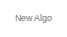
[diagram: root canvas - part 1/5, top right region]
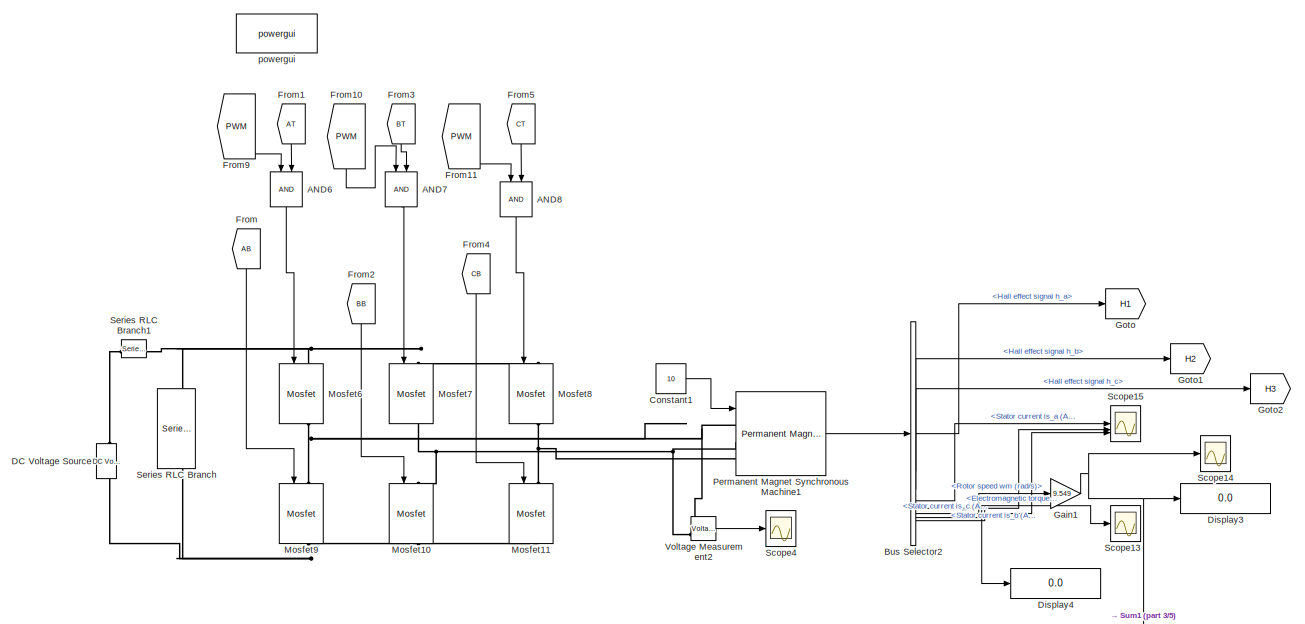
[diagram: root canvas - part 2/5, top left region]
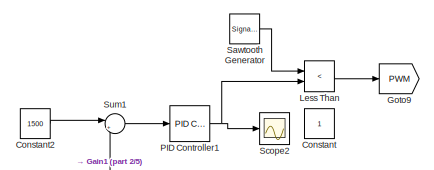
[diagram: root canvas - part 3/5, top left region]
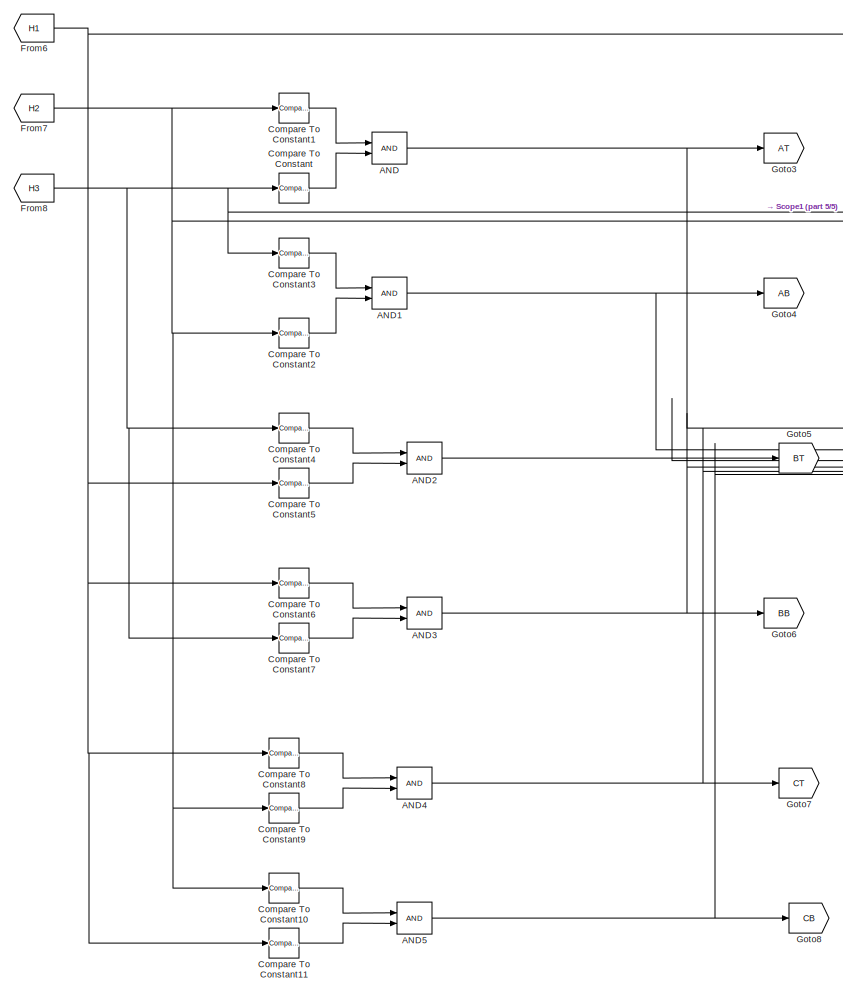
[diagram: root canvas - part 4/5, bottom right region]
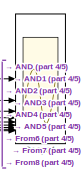
[diagram: root canvas - part 5/5, bottom right region]
MODEL slx_87680c7f2518
KIND model
CONFIG AbsTol = auto
CONFIG EnableMultiTasking = off
CONFIG FixedStep = auto
CONFIG MaxStep = auto
CONFIG MinStep = auto
CONFIG RelTol = 1e-3
CONFIG SampleTimeConstraint = Unconstrained
CONFIG SolverName = VariableStepAuto
CONFIG StartTime = 0.0
CONFIG StopTime = 10.0
BLOCK [Logic] AND
  AllPortsSameDT = off
  IconShape = distinctive
  OutDataTypeStr = boolean
BLOCK [Logic] AND1
  AllPortsSameDT = off
  IconShape = distinctive
  OutDataTypeStr = boolean
BLOCK [Logic] AND2
  AllPortsSameDT = off
  IconShape = distinctive
  OutDataTypeStr = boolean
BLOCK [Logic] AND3
  AllPortsSameDT = off
  IconShape = distinctive
  OutDataTypeStr = boolean
BLOCK [Logic] AND4
  AllPortsSameDT = off
  IconShape = distinctive
  OutDataTypeStr = boolean
BLOCK [Logic] AND5
  AllPortsSameDT = off
  IconShape = distinctive
  OutDataTypeStr = boolean
BLOCK [Logic] AND6
  AllPortsSameDT = off
  IconShape = distinctive
  NameLocation = left
  OutDataTypeStr = boolean
BLOCK [Logic] AND7
  AllPortsSameDT = off
  IconShape = distinctive
  NameLocation = left
  OutDataTypeStr = boolean
BLOCK [Logic] AND8
  AllPortsSameDT = off
  IconShape = distinctive
  NameLocation = left
  OutDataTypeStr = boolean
BLOCK [BusSelector] Bus Selector2
  OutputSignals = Hall effect signal h_a,Hall effect signal h_b,Hall effect signal h_c,Stator current is_a (A),Stator current is_b (A),Stator current is_c (A),Rotor speed wm (rad/s),Electromagnetic torque Te (N*m)
BLOCK [Reference] Compare To Constant  REF=simulink/Logic and Bit
Operations/Compare
To Constant
  SourceBlock = simulink/Logic and Bit\nOperations/Compare\nTo Constant
  SourceType = Compare To Constant
BLOCK [Reference] Compare To Constant1  REF=simulink/Logic and Bit
Operations/Compare
To Constant
  SourceBlock = simulink/Logic and Bit\nOperations/Compare\nTo Constant
  SourceType = Compare To Constant
BLOCK [Reference] Compare To Constant10  REF=simulink/Logic and Bit
Operations/Compare
To Constant
  SourceBlock = simulink/Logic and Bit\nOperations/Compare\nTo Constant
  SourceType = Compare To Constant
BLOCK [Reference] Compare To Constant11  REF=simulink/Logic and Bit
Operations/Compare
To Constant
  SourceBlock = simulink/Logic and Bit\nOperations/Compare\nTo Constant
  SourceType = Compare To Constant
BLOCK [Reference] Compare To Constant2  REF=simulink/Logic and Bit
Operations/Compare
To Constant
  SourceBlock = simulink/Logic and Bit\nOperations/Compare\nTo Constant
  SourceType = Compare To Constant
BLOCK [Reference] Compare To Constant3  REF=simulink/Logic and Bit
Operations/Compare
To Constant
  SourceBlock = simulink/Logic and Bit\nOperations/Compare\nTo Constant
  SourceType = Compare To Constant
BLOCK [Reference] Compare To Constant4  REF=simulink/Logic and Bit
Operations/Compare
To Constant
  SourceBlock = simulink/Logic and Bit\nOperations/Compare\nTo Constant
  SourceType = Compare To Constant
BLOCK [Reference] Compare To Constant5  REF=simulink/Logic and Bit
Operations/Compare
To Constant
  SourceBlock = simulink/Logic and Bit\nOperations/Compare\nTo Constant
  SourceType = Compare To Constant
BLOCK [Reference] Compare To Constant6  REF=simulink/Logic and Bit
Operations/Compare
To Constant
  SourceBlock = simulink/Logic and Bit\nOperations/Compare\nTo Constant
  SourceType = Compare To Constant
BLOCK [Reference] Compare To Constant7  REF=simulink/Logic and Bit
Operations/Compare
To Constant
  SourceBlock = simulink/Logic and Bit\nOperations/Compare\nTo Constant
  SourceType = Compare To Constant
BLOCK [Reference] Compare To Constant8  REF=simulink/Logic and Bit
Operations/Compare
To Constant
  SourceBlock = simulink/Logic and Bit\nOperations/Compare\nTo Constant
  SourceType = Compare To Constant
BLOCK [Reference] Compare To Constant9  REF=simulink/Logic and Bit
Operations/Compare
To Constant
  SourceBlock = simulink/Logic and Bit\nOperations/Compare\nTo Constant
  SourceType = Compare To Constant
BLOCK [Constant] Constant
  Commented = on
BLOCK [Constant] Constant1
  Value = 10
BLOCK [Constant] Constant2
  Value = 1500
BLOCK [Reference] DC Voltage Source  REF=spsDCVoltageSourceLib/DC Voltage Source
  LibrarySourceBlock = sps_lib/Sources/DC Voltage Source
  NameLocation = right
  SourceBlock = spsDCVoltageSourceLib/DC Voltage Source
  SourceType = DC Voltage Source
BLOCK [Display] Display3
  Decimation = 1
BLOCK [Display] Display4
  Decimation = 1
BLOCK [From] From
  GotoTag = AB
  NameLocation = left
  TagVisibility = global
BLOCK [From] From1
  GotoTag = AT
  NameLocation = left
  TagVisibility = global
BLOCK [From] From10
  GotoTag = PWM
  NameLocation = left
BLOCK [From] From11
  GotoTag = PWM
  NameLocation = left
BLOCK [From] From2
  GotoTag = BB
  NameLocation = left
  TagVisibility = global
BLOCK [From] From3
  GotoTag = BT
  NameLocation = left
  TagVisibility = global
BLOCK [From] From4
  GotoTag = CB
  NameLocation = left
  TagVisibility = global
BLOCK [From] From5
  GotoTag = CT
  NameLocation = left
  TagVisibility = global
BLOCK [From] From6
  GotoTag = H1
BLOCK [From] From7
  GotoTag = H2
BLOCK [From] From8
  GotoTag = H3
BLOCK [From] From9
  GotoTag = PWM
  NameLocation = left
BLOCK [Gain] Gain1
  Gain = 9.549
BLOCK [Goto] Goto
  GotoTag = H1
BLOCK [Goto] Goto1
  GotoTag = H2
BLOCK [Goto] Goto2
  GotoTag = H3
BLOCK [Goto] Goto3
  GotoTag = AT
  TagVisibility = global
BLOCK [Goto] Goto4
  GotoTag = AB
  TagVisibility = global
BLOCK [Goto] Goto5
  GotoTag = BT
  TagVisibility = global
BLOCK [Goto] Goto6
  GotoTag = BB
  TagVisibility = global
BLOCK [Goto] Goto7
  GotoTag = CT
  TagVisibility = global
BLOCK [Goto] Goto8
  GotoTag = CB
  TagVisibility = global
BLOCK [Goto] Goto9
  GotoTag = PWM
BLOCK [RelationalOperator] Less Than
  InputSameDT = off
  Operator = <
  OutDataTypeStr = boolean
  RndMeth = Simplest
BLOCK [Reference] Mosfet10  REF=spsMosfetLib/Mosfet
  LibrarySourceBlock = sps_lib/Power Electronics/Mosfet
  NameLocation = left
  SourceBlock = spsMosfetLib/Mosfet
  SourceType = Mosfet
BLOCK [Reference] Mosfet11  REF=spsMosfetLib/Mosfet
  LibrarySourceBlock = sps_lib/Power Electronics/Mosfet
  NameLocation = left
  SourceBlock = spsMosfetLib/Mosfet
  SourceType = Mosfet
BLOCK [Reference] Mosfet6  REF=spsMosfetLib/Mosfet
  LibrarySourceBlock = sps_lib/Power Electronics/Mosfet
  NameLocation = left
  SourceBlock = spsMosfetLib/Mosfet
  SourceType = Mosfet
BLOCK [Reference] Mosfet7  REF=spsMosfetLib/Mosfet
  LibrarySourceBlock = sps_lib/Power Electronics/Mosfet
  NameLocation = left
  SourceBlock = spsMosfetLib/Mosfet
  SourceType = Mosfet
BLOCK [Reference] Mosfet8  REF=spsMosfetLib/Mosfet
  LibrarySourceBlock = sps_lib/Power Electronics/Mosfet
  NameLocation = left
  SourceBlock = spsMosfetLib/Mosfet
  SourceType = Mosfet
BLOCK [Reference] Mosfet9  REF=spsMosfetLib/Mosfet
  LibrarySourceBlock = sps_lib/Power Electronics/Mosfet
  NameLocation = left
  SourceBlock = spsMosfetLib/Mosfet
  SourceType = Mosfet
BLOCK [Reference] PID Controller1  REF=slpidlib/PID Controller
  SourceBlock = slpidlib/PID Controller
  SourceType = PID 1dof
BLOCK [Reference] Permanent Magnet Synchronous Machine1  REF=spsPermanentMagnetSynchronousMachineLib/Permanent Magnet
Synchronous Machine
  LibrarySourceBlock = sps_lib/Electrical Machines/Permanent Magnet\nSynchronous Machine
  SourceBlock = spsPermanentMagnetSynchronousMachineLib/Permanent Magnet\nSynchronous Machine
  SourceType = Permanent Magnet Synchronous Machine
BLOCK [SignalGenerator] Sawtooth Generator
  Frequency = 10000
  WaveForm = sawtooth
BLOCK [Scope] Scope1
  Floating = off
  NumInputPorts = 9
  ScopeSpecificationString = Simulink.scopes.TimeScopeBlockCfg('CurrentConfiguration', extmgr.ConfigurationSet(extmgr.Configuration('Core','General UI',true),extmgr.Configuration('Core','Source UI',true),extmgr.Configuration('Sources','WiredSimulink',true,'DataLoggingVariableName','ScopeData9','DataLoggingSaveFormat','Array','DataLoggingDecimation','1'),extmgr.Configuration('Visuals','Time Domain',true,'SerializedDisplays',{s...<+7106ch>
BLOCK [Scope] Scope13
  Floating = off
  NumInputPorts = 2
  ScopeSpecificationString = Simulink.scopes.TimeScopeBlockCfg('CurrentConfiguration', extmgr.ConfigurationSet(extmgr.Configuration('Core','General UI',true),extmgr.Configuration('Core','Source UI',true),extmgr.Configuration('Sources','WiredSimulink',true,'DataLoggingVariableName','ScopeData10'),extmgr.Configuration('Visuals','Time Domain',true,'SerializedDisplays',{struct('MinYLimReal','4.0941','MaxYLimReal','14.69471','YLab...<+2190ch>
BLOCK [Scope] Scope14
  Floating = off
  NumInputPorts = 1
  ScopeSpecificationString = Simulink.scopes.TimeScopeBlockCfg('CurrentConfiguration', extmgr.ConfigurationSet(extmgr.Configuration('Core','General UI',true),extmgr.Configuration('Core','Source UI',true),extmgr.Configuration('Sources','WiredSimulink',true,'DataLoggingVariableName','ScopeData11'),extmgr.Configuration('Visuals','Time Domain',true,'SerializedDisplays',{struct('MinYLimReal','-259.1278','MaxYLimReal','1938.99669',...<+1623ch>
BLOCK [Scope] Scope15
  Floating = off
  NumInputPorts = 3
  ScopeSpecificationString = Simulink.scopes.TimeScopeBlockCfg('CurrentConfiguration', extmgr.ConfigurationSet(extmgr.Configuration('Core','General UI',true),extmgr.Configuration('Core','Source UI',true),extmgr.Configuration('Sources','WiredSimulink',true,'DataLoggingVariableName','ScopeData12'),extmgr.Configuration('Visuals','Time Domain',true,'SerializedDisplays',{struct('MinYLimReal','-33.55995','MaxYLimReal','59.36456','Y...<+2844ch>
BLOCK [Scope] Scope2
  Floating = off
  NumInputPorts = 1
  ScopeSpecificationString = Simulink.scopes.TimeScopeBlockCfg('CurrentConfiguration', extmgr.ConfigurationSet(extmgr.Configuration('Core','General UI',true),extmgr.Configuration('Core','Source UI',true),extmgr.Configuration('Sources','WiredSimulink',true,'DataLoggingVariableName','ScopeData13'),extmgr.Configuration('Visuals','Time Domain',true,'SerializedDisplays',{struct('MinYLimReal','-1.25','MaxYLimReal','1.25','YLabelRea...<+1461ch>
BLOCK [Scope] Scope4
  Floating = off
  NumInputPorts = 1
  ScopeSpecificationString = Simulink.scopes.TimeScopeBlockCfg('CurrentConfiguration', extmgr.ConfigurationSet(extmgr.Configuration('Core','General UI',true),extmgr.Configuration('Core','Source UI',true),extmgr.Configuration('Sources','WiredSimulink',true,'DataLoggingVariableName','ScopeData15'),extmgr.Configuration('Visuals','Time Domain',true,'SerializedDisplays',{struct('MinYLimReal','-233.3388','MaxYLimReal','231.65591','...<+1513ch>
BLOCK [Reference] Series RLC Branch  REF=spsSeriesRLCBranchLib/Series RLC Branch
  LibrarySourceBlock = sps_lib/Passives/Series RLC Branch
  NameLocation = left
  SourceBlock = spsSeriesRLCBranchLib/Series RLC Branch
  SourceType = Series RLC Branch
BLOCK [Reference] Series RLC Branch1  REF=spsSeriesRLCBranchLib/Series RLC Branch
  LibrarySourceBlock = sps_lib/Passives/Series RLC Branch
  NameLocation = top
  SourceBlock = spsSeriesRLCBranchLib/Series RLC Branch
  SourceType = Series RLC Branch
BLOCK [Sum] Sum1
  Inputs = |+-
BLOCK [Reference] Voltage Measurement2  REF=spsVoltageMeasurementLib/Voltage Measurement
  LibrarySourceBlock = sps_lib/Sensors and Measurements/Voltage Measurement
  SourceBlock = spsVoltageMeasurementLib/Voltage Measurement
  SourceType = Voltage Measurement
  UserDataPersistent = on
BLOCK [Reference] powergui  REF=spspowerguiLib/powergui
  LibrarySourceBlock = sps_lib/powergui
  Priority = 1
  SourceBlock = spspowerguiLib/powergui
  SourceType = PSB option menu block
ANNOTATION (root): New Algo
NET AND1:1 -> Goto4:1, Scope1:2
NET AND2:1 -> Goto5:1, Scope1:3
NET AND3:1 -> Goto6:1, Scope1:4
NET AND4:1 -> Goto7:1, Scope1:5
NET AND5:1 -> Goto8:1, Scope1:6
LINE AND6:1 -> Mosfet6:1
LINE AND7:1 -> Mosfet7:1
LINE AND8:1 -> Mosfet8:1
NET AND:1 -> Goto3:1, Scope1:1
LINE Bus Selector2:1 -> Goto:1
LINE Bus Selector2:2 -> Goto1:1
LINE Bus Selector2:3 -> Goto2:1
LINE Bus Selector2:4 -> Scope15:1
LINE Bus Selector2:5 -> Scope15:2
LINE Bus Selector2:6 -> Scope15:3
LINE Bus Selector2:7 -> Gain1:1
NET Bus Selector2:8 -> Display4:1, Scope13:1
LINE Compare To Constant10:1 -> AND5:1
LINE Compare To Constant11:1 -> AND5:2
LINE Compare To Constant1:1 -> AND:1
LINE Compare To Constant2:1 -> AND1:2
LINE Compare To Constant3:1 -> AND1:1
LINE Compare To Constant4:1 -> AND2:1
LINE Compare To Constant5:1 -> AND2:2
LINE Compare To Constant6:1 -> AND3:1
LINE Compare To Constant7:1 -> AND3:2
LINE Compare To Constant8:1 -> AND4:1
LINE Compare To Constant9:1 -> AND4:2
LINE Compare To Constant:1 -> AND:2
LINE Constant1:1 -> Permanent Magnet Synchronous Machine1:1
LINE Constant2:1 -> Sum1:1
LINE From10:1 -> AND7:1
LINE From11:1 -> AND8:1
LINE From1:1 -> AND6:2
LINE From2:1 -> Mosfet10:1
LINE From3:1 -> AND7:2
LINE From4:1 -> Mosfet11:1
LINE From5:1 -> AND8:2
NET From6:1 -> Compare To Constant11:1, Compare To Constant5:1, Compare To Constant6:1, Compare To Constant8:1, Scope1:7
NET From7:1 -> Compare To Constant10:1, Compare To Constant1:1, Compare To Constant2:1, Compare To Constant9:1, Scope1:8
NET From8:1 -> Compare To Constant3:1, Compare To Constant4:1, Compare To Constant7:1, Compare To Constant:1, Scope1:9
LINE From9:1 -> AND6:1
LINE From:1 -> Mosfet9:1
NET Gain1:1 -> Display3:1, Scope14:1, Sum1:2
LINE Less Than:1 -> Goto9:1
NET PID Controller1:1 -> Less Than:2, Scope2:1
LINE Permanent Magnet Synchronous Machine1:1 -> Bus Selector2:1
LINE Sawtooth Generator:1 -> Less Than:1
LINE Sum1:1 -> PID Controller1:1
LINE Voltage Measurement2:1 -> Scope4:1
PNET net1: DC Voltage Source:LConn1 -- Mosfet10:RConn1 -- Mosfet11:RConn1 -- Mosfet9:RConn1 -- Series RLC Branch:RConn1
PLINE DC Voltage Source:RConn1 -- Series RLC Branch1:RConn1
PNET net2: Mosfet10:LConn1 -- Mosfet7:RConn1 -- Permanent Magnet Synchronous Machine1:LConn2 -- Voltage Measurement2:LConn2
PNET net3: Mosfet11:LConn1 -- Mosfet8:RConn1 -- Permanent Magnet Synchronous Machine1:LConn3
PNET net4: Mosfet6:LConn1 -- Mosfet7:LConn1 -- Mosfet8:LConn1 -- Series RLC Branch1:LConn1 -- Series RLC Branch:LConn1
PNET net5: Mosfet6:RConn1 -- Mosfet9:LConn1 -- Permanent Magnet Synchronous Machine1:LConn1 -- Voltage Measurement2:LConn1
note: NET lines group one-source signal fan-out (src -> all destinations, sorted); 1:1 wires keep LINE; PNET lines group multi-terminal physical nets as a canonical sorted terminal list (undirected conserving connections); 2-terminal nets keep the pairwise PLINE form
